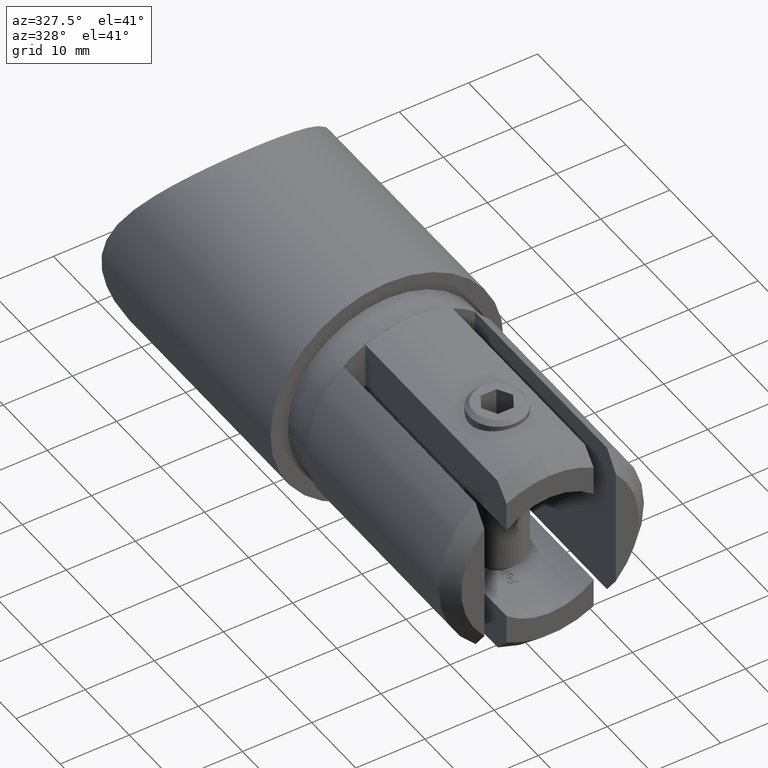
[diagram: clean part render]
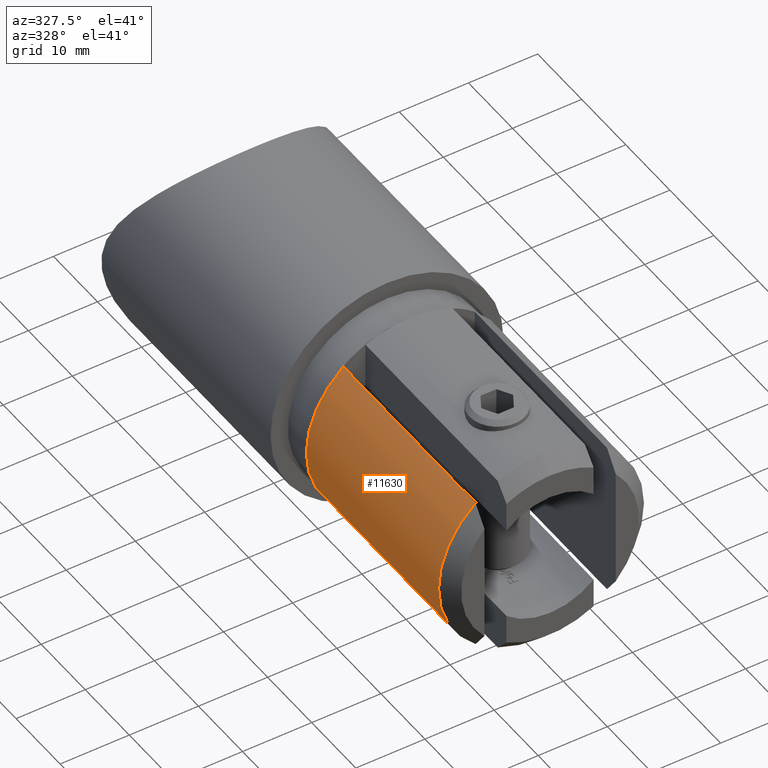
[diagram: same view with one face highlighted and labeled with its STEP entity id]
A machine part, auxiliary view. The second image highlights one B-rep face of the part: STEP entity #11630.
In plain terms, the highlighted cylindrical surface (partial cylindrical patch) has radius 14.85 mm, axis along (0, 1, 0).
Its self-contained STEP definition (entity closure, byte-faithful):
#399 = LINE ( 'NONE', #13870, #1421 ) ;
#819 = CARTESIAN_POINT ( 'NONE',  ( -9.499999999999996400, -37.00000000000000000, 11.41369791084379900 ) ) ;
#881 = ORIENTED_EDGE ( 'NONE', *, *, #12405, .T. ) ;
#1110 = AXIS2_PLACEMENT_3D ( 'NONE', #6734, #8957, #6598 ) ;
#1176 = VERTEX_POINT ( 'NONE', #4699 ) ;
#1421 = VECTOR ( 'NONE', #9497, 1000.000000000000000 ) ;
#2655 = CARTESIAN_POINT ( 'NONE',  ( -9.500000000000000000, -4.999999999999992900, -11.41369791084380100 ) ) ;
#2665 = AXIS2_PLACEMENT_3D ( 'NONE', #8190, #4898, #13639 ) ;
#3413 = CARTESIAN_POINT ( 'NONE',  ( 0.0000000000000000000, -37.00000000000000000, 0.0000000000000000000 ) ) ;
#3546 = CIRCLE ( 'NONE', #2665, 14.85000000000000100 ) ;
#4006 = CARTESIAN_POINT ( 'NONE',  ( -9.499999999999996400, -34.99999999999999300, -11.41369791084379900 ) ) ;
#4540 = ORIENTED_EDGE ( 'NONE', *, *, #11299, .T. ) ;
#4699 = CARTESIAN_POINT ( 'NONE',  ( -9.499999999999996400, -34.99999999999999300, 11.41369791084379900 ) ) ;
#4898 = DIRECTION ( 'NONE',  ( 0.0000000000000000000, 1.000000000000000000, 0.0000000000000000000 ) ) ;
#4955 = EDGE_CURVE ( 'NONE', #5139, #1176, #3546, .T. ) ;
#5139 = VERTEX_POINT ( 'NONE', #4006 ) ;
#5569 = DIRECTION ( 'NONE',  ( -0.0000000000000000000, 1.000000000000000000, -0.0000000000000000000 ) ) ;
#6235 = CYLINDRICAL_SURFACE ( 'NONE', #11415, 14.85000000000000100 ) ;
#6598 = DIRECTION ( 'NONE',  ( 0.0000000000000000000, 0.0000000000000000000, -1.000000000000000000 ) ) ;
#6734 = CARTESIAN_POINT ( 'NONE',  ( 0.0000000000000000000, -4.999999999999986700, 0.0000000000000000000 ) ) ;
#6752 = VECTOR ( 'NONE', #7195, 1000.000000000000000 ) ;
#6904 = FACE_OUTER_BOUND ( 'NONE', #10283, .T. ) ;
#7195 = DIRECTION ( 'NONE',  ( -0.0000000000000000000, 1.000000000000000000, -0.0000000000000000000 ) ) ;
#7861 = CIRCLE ( 'NONE', #1110, 14.85000000000000100 ) ;
#7884 = VERTEX_POINT ( 'NONE', #2655 ) ;
#7975 = ORIENTED_EDGE ( 'NONE', *, *, #4955, .T. ) ;
#8190 = CARTESIAN_POINT ( 'NONE',  ( 0.0000000000000000000, -34.99999999999999300, 0.0000000000000000000 ) ) ;
#8957 = DIRECTION ( 'NONE',  ( -0.0000000000000000000, -1.000000000000000000, -0.0000000000000000000 ) ) ;
#9497 = DIRECTION ( 'NONE',  ( 0.0000000000000000000, -1.000000000000000000, 0.0000000000000000000 ) ) ;
#9697 = LINE ( 'NONE', #819, #6752 ) ;
#10283 = EDGE_LOOP ( 'NONE', ( #7975, #4540, #11723, #881 ) ) ;
#11299 = EDGE_CURVE ( 'NONE', #1176, #12564, #9697, .T. ) ;
#11415 = AXIS2_PLACEMENT_3D ( 'NONE', #3413, #5569, #12130 ) ;
#11630 = ADVANCED_FACE ( 'NONE', ( #6904 ), #6235, .T. ) ;
#11723 = ORIENTED_EDGE ( 'NONE', *, *, #12566, .T. ) ;
#12130 = DIRECTION ( 'NONE',  ( 0.0000000000000000000, 0.0000000000000000000, 1.000000000000000000 ) ) ;
#12405 = EDGE_CURVE ( 'NONE', #7884, #5139, #399, .T. ) ;
#12564 = VERTEX_POINT ( 'NONE', #14066 ) ;
#12566 = EDGE_CURVE ( 'NONE', #12564, #7884, #7861, .T. ) ;
#13639 = DIRECTION ( 'NONE',  ( 0.0000000000000000000, 0.0000000000000000000, -1.000000000000000000 ) ) ;
#13870 = CARTESIAN_POINT ( 'NONE',  ( -9.499999999999996400, -37.00000000000000000, -11.41369791084379900 ) ) ;
#14066 = CARTESIAN_POINT ( 'NONE',  ( -9.500000000000000000, -4.999999999999992900, 11.41369791084380100 ) ) ;